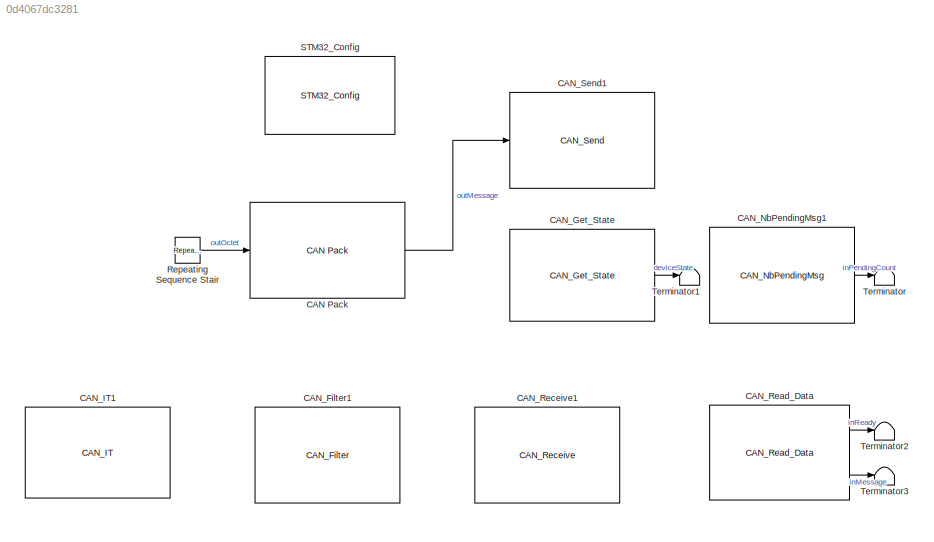
MODEL slx_0d4067dc3281
KIND model
CONFIG AbsTol = auto
CONFIG EnableMultiTasking = on
CONFIG FixedStep = 0.2
CONFIG MaxStep = auto
CONFIG MinStep = auto
CONFIG RelTol = 1e-3
CONFIG SampleTimeConstraint = Unconstrained
CONFIG Solver = FixedStepDiscrete
CONFIG SolverName = FixedStepDiscrete
CONFIG StartTime = 0.0
CONFIG StopTime = 10.0
BLOCK [Reference] CAN Pack  REF=canmsglib/CAN Pack
  AttributesFormatString = Priority=%<Priority>
  Ports = [1, 1]
  Priority = 1
  SourceBlock = canmsglib/CAN Pack
  SourceProductBaseCode = XP
  SourceProductName = Simulink Real-Time
  SourceType = CAN Pack
BLOCK [Reference] CAN_Filter1  REF=CAN_Lib/CAN_Filter
  Ports = []
  SourceBlock = CAN_Lib/CAN_Filter
  SourceProductName = Target Support Package - STM32 Adapter
  SourceType = CAN_Filter
BLOCK [Reference] CAN_Get_State  REF=CAN_Lib/CAN_Get_State
  Ports = [0, 1]
  SourceBlock = CAN_Lib/CAN_Get_State
  SourceProductName = Target Support Package - STM32 Adapter
  SourceType = CAN_Get_State
BLOCK [Reference] CAN_IT1  REF=CAN_Lib/CAN_IT
  Ports = []
  SourceBlock = CAN_Lib/CAN_IT
  SourceProductName = Target Support Package - STM32 Adapter
  SourceType = CAN_IT
BLOCK [Reference] CAN_NbPendingMsg1  REF=CAN_Lib/CAN_NbPendingMsg
  Ports = [0, 1]
  SourceBlock = CAN_Lib/CAN_NbPendingMsg
  SourceProductName = Target Support Package - STM32 Adapter
  SourceType = CAN_NbPendingMsg
BLOCK [Reference] CAN_Read_Data  REF=CAN_Lib/CAN_Read_Data
  Ports = [0, 2]
  SourceBlock = CAN_Lib/CAN_Read_Data
  SourceProductName = Target Support Package - STM32 Adapter
  SourceType = CAN_Read_Data
BLOCK [Reference] CAN_Receive1  REF=CAN_Lib/CAN_Receive
  Ports = []
  SourceBlock = CAN_Lib/CAN_Receive
  SourceProductName = Target Support Package - STM32 Adapter
  SourceType = CAN_Receive
BLOCK [Reference] CAN_Send1  REF=CAN_Lib/CAN_Send
  Ports = [1]
  SourceBlock = CAN_Lib/CAN_Send
  SourceProductName = Target Support Package - STM32 Adapter
  SourceType = CAN_Send
BLOCK [Reference] Repeating Sequence Stair  REF=simulink/Sources/Repeating
Sequence
Stair
  Ports = [0, 1]
  SourceBlock = simulink/Sources/Repeating\nSequence\nStair
  SourceProductBaseCode = SL
  SourceProductName = Simulink
  SourceType = Repeating Sequence Stair
BLOCK [Reference] STM32_Config  REF=STM32_Config_Lib/STM32_Config
  Ports = []
  Priority = 0
  SourceBlock = STM32_Config_Lib/STM32_Config
  SourceProductName = Target Support Package - STM32 Adapter
  SourceType = STM32_Config
BLOCK [Terminator] Terminator
BLOCK [Terminator] Terminator1
BLOCK [Terminator] Terminator2
BLOCK [Terminator] Terminator3
LINE CAN Pack:1 -> CAN_Send1:1
LINE CAN_Get_State:1 -> Terminator1:1
LINE CAN_NbPendingMsg1:1 -> Terminator:1
LINE CAN_Read_Data:1 -> Terminator2:1
LINE CAN_Read_Data:2 -> Terminator3:1
LINE Repeating Sequence Stair:1 -> CAN Pack:1
